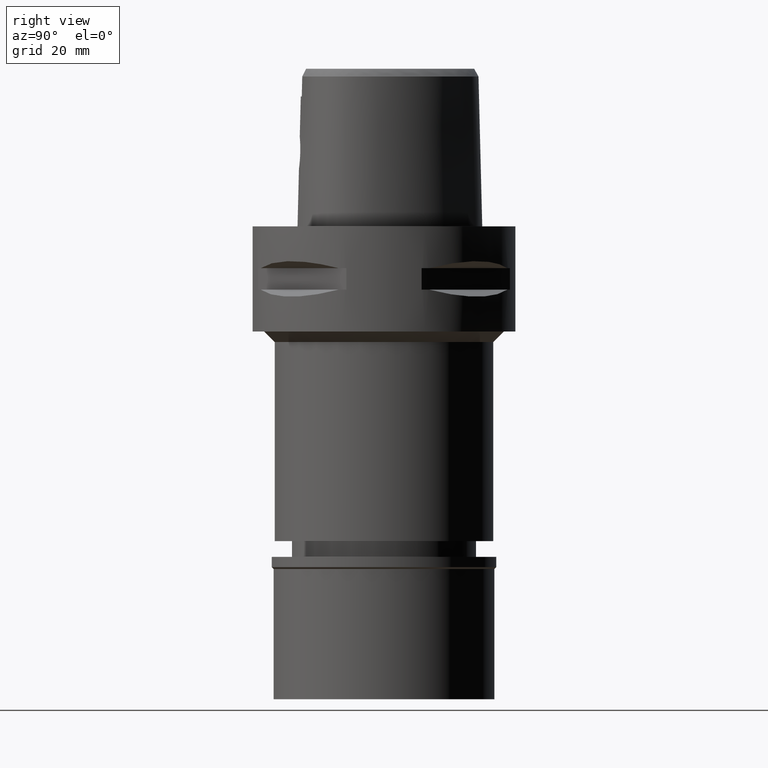
[diagram: clean part render]
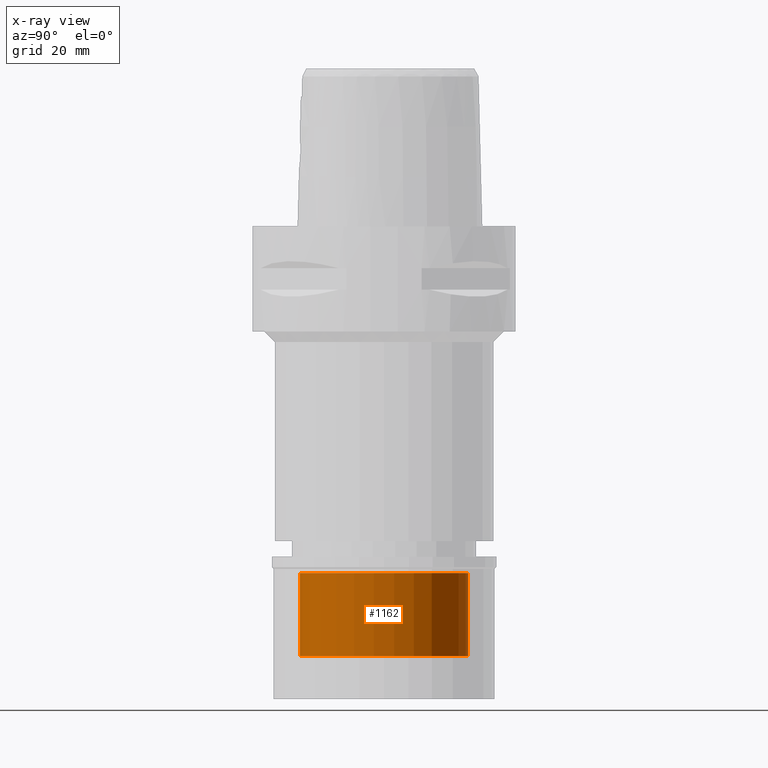
[diagram: x-ray — body ghosted, one internal face saturated and labeled with its STEP entity id]
A machine part, right view, then the same camera in x-ray: the body is ghosted and one INTERNAL B-rep face — a face not visible from any outside direction — is saturated and labeled: STEP entity #1162.
In plain terms, the highlighted cylindrical surface (partial cylindrical patch) has radius 16 mm, axis along (0, 0, -1).
Its self-contained STEP definition (entity closure, byte-faithful):
#252 = AXIS2_PLACEMENT_3D ( 'NONE', #3414, #2740, #4235 ) ;
#436 = LINE ( 'NONE', #1634, #483 ) ;
#458 = CARTESIAN_POINT ( 'NONE',  ( 0.0000000000000000000, 16.00000000000000000, -18.89999999999999858 ) ) ;
#464 = DIRECTION ( 'NONE',  ( 0.0000000000000000000, 0.0000000000000000000, -1.000000000000000000 ) ) ;
#483 = VECTOR ( 'NONE', #4575, 1000.000000000000000 ) ;
#679 = VERTEX_POINT ( 'NONE', #872 ) ;
#685 = LINE ( 'NONE', #3675, #2193 ) ;
#796 = DIRECTION ( 'NONE',  ( 0.0000000000000000000, 1.000000000000000000, 0.0000000000000000000 ) ) ;
#872 = CARTESIAN_POINT ( 'NONE',  ( 0.0000000000000000000, -16.00000000000000000, -18.89999999999999858 ) ) ;
#1162 = ADVANCED_FACE ( 'NONE', ( #3862 ), #4602, .F. ) ;
#1261 = CIRCLE ( 'NONE', #252, 16.00000000000000000 ) ;
#1571 = CARTESIAN_POINT ( 'NONE',  ( 0.0000000000000000000, 0.0000000000000000000, -18.89999999999999858 ) ) ;
#1634 = CARTESIAN_POINT ( 'NONE',  ( 0.0000000000000000000, -16.00000000000000000, -18.89999999999999858 ) ) ;
#1707 = AXIS2_PLACEMENT_3D ( 'NONE', #4264, #464, #3140 ) ;
#1767 = CARTESIAN_POINT ( 'NONE',  ( 0.0000000000000000000, 16.00000000000000000, -3.100000000000000089 ) ) ;
#1850 = ORIENTED_EDGE ( 'NONE', *, *, #3783, .F. ) ;
#1920 = VERTEX_POINT ( 'NONE', #1767 ) ;
#2193 = VECTOR ( 'NONE', #3195, 1000.000000000000000 ) ;
#2537 = EDGE_CURVE ( 'NONE', #3290, #679, #3990, .T. ) ;
#2739 = ORIENTED_EDGE ( 'NONE', *, *, #3894, .T. ) ;
#2740 = DIRECTION ( 'NONE',  ( 0.0000000000000000000, 0.0000000000000000000, 1.000000000000000000 ) ) ;
#2847 = ORIENTED_EDGE ( 'NONE', *, *, #3432, .T. ) ;
#3012 = CARTESIAN_POINT ( 'NONE',  ( 0.0000000000000000000, -16.00000000000000000, -3.100000000000000089 ) ) ;
#3140 = DIRECTION ( 'NONE',  ( 0.0000000000000000000, -1.000000000000000000, 0.0000000000000000000 ) ) ;
#3195 = DIRECTION ( 'NONE',  ( 0.0000000000000000000, 0.0000000000000000000, 1.000000000000000000 ) ) ;
#3290 = VERTEX_POINT ( 'NONE', #458 ) ;
#3414 = CARTESIAN_POINT ( 'NONE',  ( 0.0000000000000000000, 0.0000000000000000000, -3.100000000000000089 ) ) ;
#3432 = EDGE_CURVE ( 'NONE', #3743, #1920, #1261, .T. ) ;
#3675 = CARTESIAN_POINT ( 'NONE',  ( 0.0000000000000000000, 16.00000000000000000, -18.89999999999999858 ) ) ;
#3743 = VERTEX_POINT ( 'NONE', #3012 ) ;
#3783 = EDGE_CURVE ( 'NONE', #3290, #1920, #685, .T. ) ;
#3823 = DIRECTION ( 'NONE',  ( 0.0000000000000000000, 0.0000000000000000000, -1.000000000000000000 ) ) ;
#3862 = FACE_OUTER_BOUND ( 'NONE', #4391, .T. ) ;
#3894 = EDGE_CURVE ( 'NONE', #679, #3743, #436, .T. ) ;
#3990 = CIRCLE ( 'NONE', #4769, 16.00000000000000000 ) ;
#4235 = DIRECTION ( 'NONE',  ( 0.0000000000000000000, -1.000000000000000000, 0.0000000000000000000 ) ) ;
#4264 = CARTESIAN_POINT ( 'NONE',  ( 0.0000000000000000000, 0.0000000000000000000, 0.0000000000000000000 ) ) ;
#4391 = EDGE_LOOP ( 'NONE', ( #4603, #2739, #2847, #1850 ) ) ;
#4575 = DIRECTION ( 'NONE',  ( 0.0000000000000000000, 0.0000000000000000000, 1.000000000000000000 ) ) ;
#4602 = CYLINDRICAL_SURFACE ( 'NONE', #1707, 16.00000000000000000 ) ;
#4603 = ORIENTED_EDGE ( 'NONE', *, *, #2537, .T. ) ;
#4769 = AXIS2_PLACEMENT_3D ( 'NONE', #1571, #3823, #796 ) ;